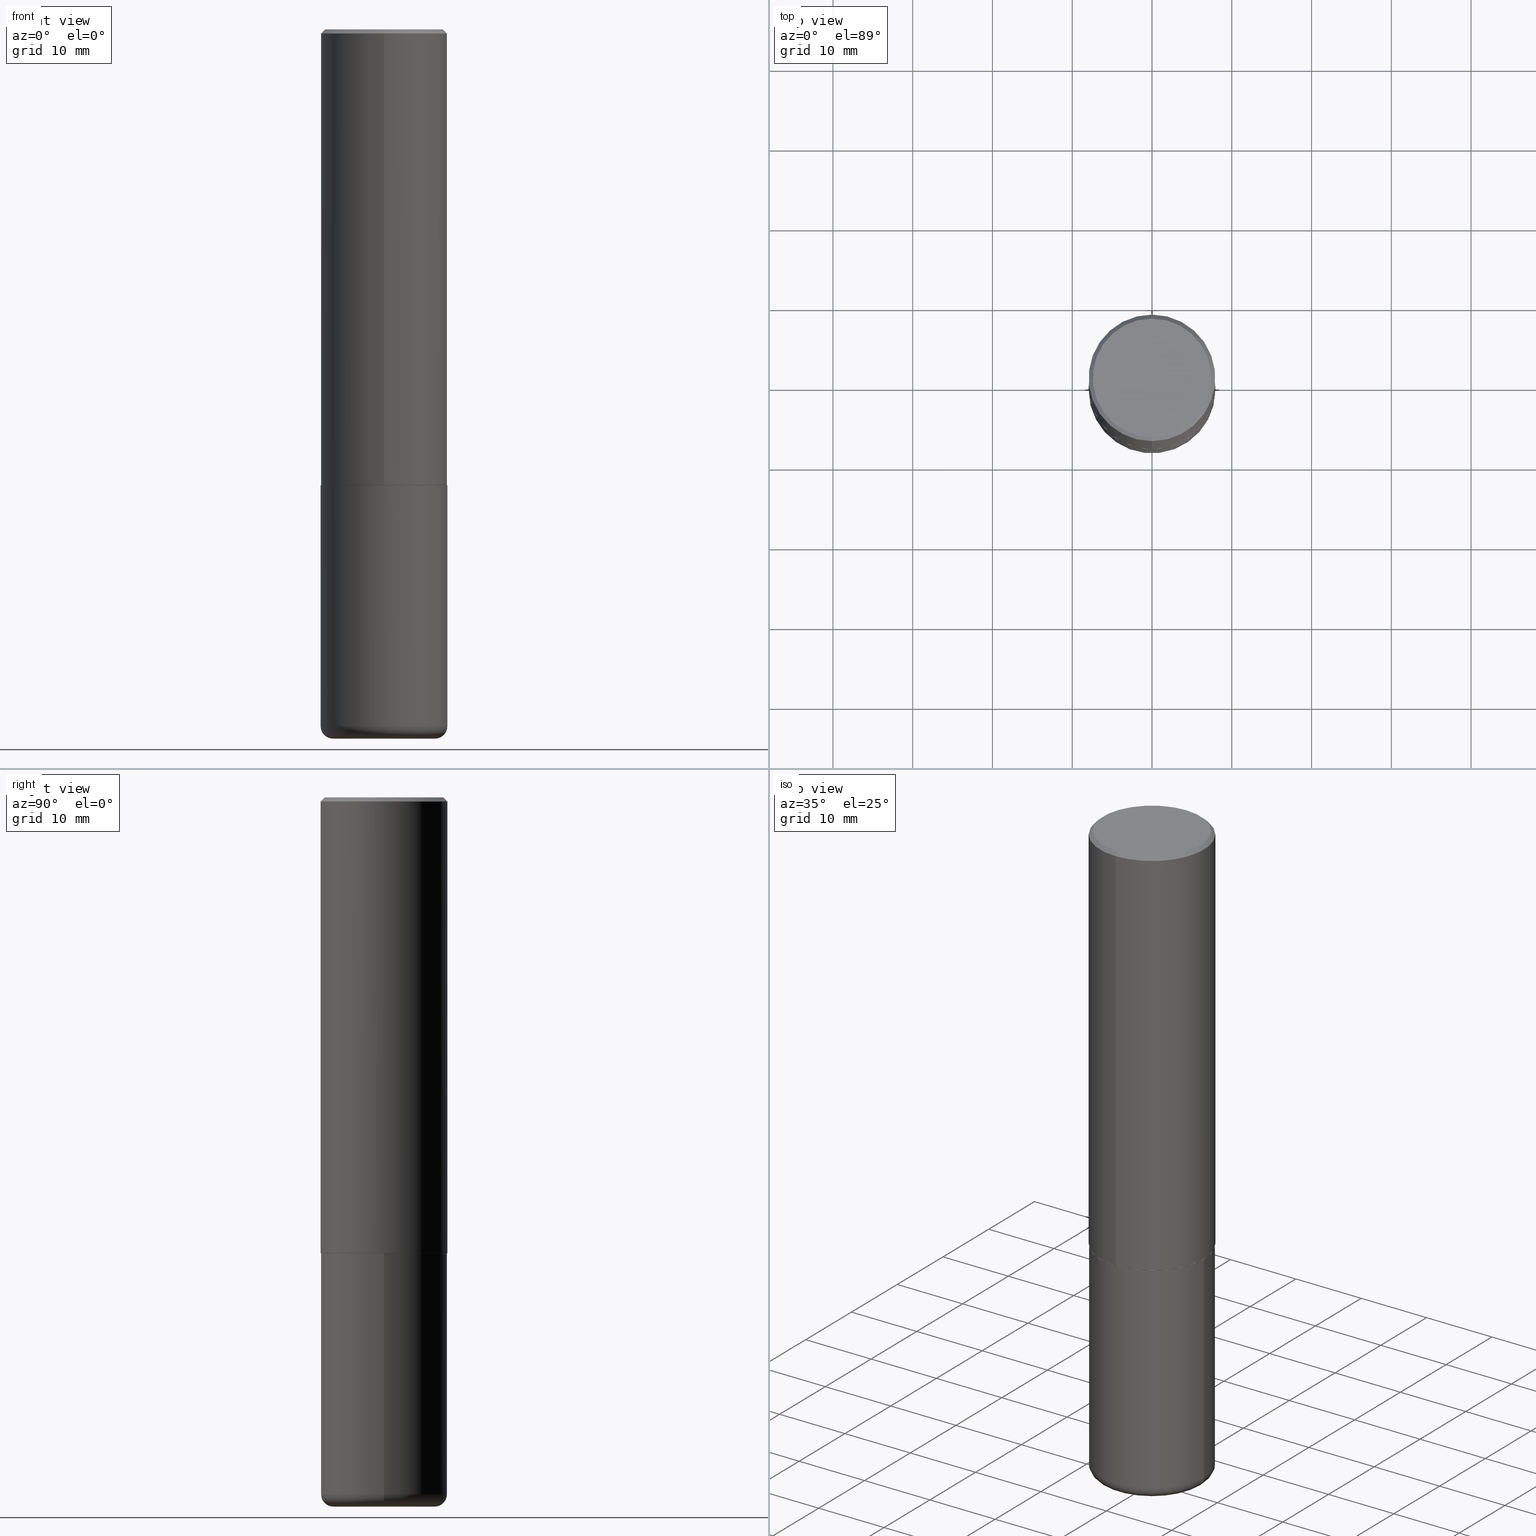
[diagram: canonical four-view strip — front | top / right | iso, engineering-drawing reading convention]
A machine part, canonical four-view strip (front | top / right | iso — engineering-drawing reading convention). The complete STEP part file that produces these views, byte-faithful:
ISO-10303-21;
HEADER;
FILE_DESCRIPTION (( 'STEP AP203' ),
    '1' );
FILE_NAME ('37201.STEP',
    '2024-03-01T21:49:35',
    ( '' ),
    ( '' ),
    'SwSTEP 2.0',
    'SolidWorks 2023',
    '' );
FILE_SCHEMA (( 'CONFIG_CONTROL_DESIGN' ));
ENDSEC;

DATA;
#1 = EDGE_CURVE ( 'NONE', #333, #210, #359, .T. ) ;
#2 = CARTESIAN_POINT ( 'NONE',  ( 5.499349729129385426E-29, -7.860064862005286079E-15, -2.249999999999999556 ) ) ;
#3 = AXIS2_PLACEMENT_3D ( 'NONE', #341, #94, #404 ) ;
#4 = DIRECTION ( 'NONE',  ( -6.982962677686265133E-15, -1.000000000000000000, 3.496765431890258103E-15 ) ) ;
#5 = ORIENTED_EDGE ( 'NONE', *, *, #203, .F. ) ;
#6 =( CONVERSION_BASED_UNIT ( 'INCH', #356 ) LENGTH_UNIT ( ) NAMED_UNIT ( #396 ) );
#7 = ORIENTED_EDGE ( 'NONE', *, *, #127, .F. ) ;
#8 = EDGE_CURVE ( 'NONE', #197, #234, #377, .T. ) ;
#9 = DESIGN_CONTEXT ( 'detailed design', #35, 'design' ) ;
#10 = CARTESIAN_POINT ( 'NONE',  ( 4.888310870337248995E-31, -6.986724321782500903E-17, -0.02000000000000006981 ) ) ;
#11 = EDGE_LOOP ( 'NONE', ( #194, #69 ) ) ;
#12 = APPLICATION_CONTEXT ( 'configuration controlled 3d designs of mechanical parts and assemblies' ) ;
#13 = DIRECTION ( 'NONE',  ( 1.000000000000000000, 0.000000000000000000, 0.000000000000000000 ) ) ;
#14 = ORIENTED_EDGE ( 'NONE', *, *, #198, .F. ) ;
#15 =( LENGTH_UNIT ( ) NAMED_UNIT ( * ) SI_UNIT ( $, .METRE. ) );
#16 = DIRECTION ( 'NONE',  ( 4.937700262164543309E-15, 0.7071067811865444641, -0.7071067811865506814 ) ) ;
#17 = PERSON_AND_ORGANIZATION_ROLE ( 'creator' ) ;
#18 = VECTOR ( 'NONE', #275, 39.37007874015748143 ) ;
#19 = AXIS2_PLACEMENT_3D ( 'NONE', #2, #189, #104 ) ;
#20 = COORDINATED_UNIVERSAL_TIME_OFFSET ( 5, 0, .BEHIND. ) ;
#21 = LINE ( 'NONE', #150, #18 ) ;
#22 = EDGE_CURVE ( 'NONE', #197, #117, #361, .T. ) ;
#23 = PERSON_AND_ORGANIZATION ( #321, #26 ) ;
#24 = LINE ( 'NONE', #184, #338 ) ;
#25 = EDGE_CURVE ( 'NONE', #133, #333, #57, .T. ) ;
#26 = ORGANIZATION ( 'UNSPECIFIED', 'UNSPECIFIED', '' ) ;
#27 = CYLINDRICAL_SURFACE ( 'NONE', #251, 0.3125000000000000000 ) ;
#28 = CARTESIAN_POINT ( 'NONE',  ( 5.496905573694216767E-29, -7.856571499844395127E-15, -2.248999999999999666 ) ) ;
#29 = PERSON_AND_ORGANIZATION ( #321, #26 ) ;
#30 = CC_DESIGN_DATE_AND_TIME_ASSIGNMENT ( #32, #177, ( #309 ) ) ;
#31 = DIRECTION ( 'NONE',  ( 1.000000000000000000, -6.982962677686269077E-15, 0.000000000000000000 ) ) ;
#32 = DATE_AND_TIME ( #313, #47 ) ;
#33 = CARTESIAN_POINT ( 'NONE',  ( 5.502304813916556222E-29, -7.855833012397076871E-15, -2.249999999999999556 ) ) ;
#34 = AXIS2_PLACEMENT_3D ( 'NONE', #33, #166, #383 ) ;
#35 = APPLICATION_CONTEXT ( 'configuration controlled 3d designs of mechanical parts and assemblies' ) ;
#36 = CARTESIAN_POINT ( 'NONE',  ( 2.220446049250341480E-15, 0.3124999999999924505, -2.249000000000000998 ) ) ;
#37 = EDGE_LOOP ( 'NONE', ( #5, #381 ) ) ;
#38 = CARTESIAN_POINT ( 'NONE',  ( 8.559140821647976968E-29, -1.222018468595100934E-14, -3.500000000000000000 ) ) ;
#39 = CARTESIAN_POINT ( 'NONE',  ( -0.3125000000000000000, -7.712818359758435078E-15, -2.249999999999999556 ) ) ;
#40 = AXIS2_PLACEMENT_3D ( 'NONE', #108, #397, #230 ) ;
#41 = CONICAL_SURFACE ( 'NONE', #19, 0.3114999999999999991, 0.7853981633975507526 ) ;
#42 = PLANE ( 'NONE',  #40 ) ;
#43 = PRODUCT_DEFINITION_SHAPE ( 'NONE', 'NONE',  #138 ) ;
#44 = ORIENTED_EDGE ( 'NONE', *, *, #326, .T. ) ;
#45 = ORIENTED_EDGE ( 'NONE', *, *, #78, .F. ) ;
#46 = ORIENTED_EDGE ( 'NONE', *, *, #1, .T. ) ;
#47 = LOCAL_TIME ( 16, 49, 35.00000000000000000, #124 ) ;
#48 = PERSON_AND_ORGANIZATION ( #321, #26 ) ;
#49 = EDGE_LOOP ( 'NONE', ( #45, #394, #240, #82 ) ) ;
#50 = COORDINATED_UNIVERSAL_TIME_OFFSET ( 5, 0, .BEHIND. ) ;
#51 = CARTESIAN_POINT ( 'NONE',  ( -2.175192874099216718E-15, -0.3115000000000078817, -2.249999999999998668 ) ) ;
#52 = CC_DESIGN_PERSON_AND_ORGANIZATION_ASSIGNMENT ( #23, #190, ( #84 ) ) ;
#53 = DIRECTION ( 'NONE',  ( -2.445468806185136877E-29, 3.491481338843145188E-15, 1.000000000000000000 ) ) ;
#54 = VECTOR ( 'NONE', #337, 39.37007874015748143 ) ;
#55 =( GEOMETRIC_REPRESENTATION_CONTEXT ( 3 ) GLOBAL_UNCERTAINTY_ASSIGNED_CONTEXT ( ( #273 ) ) GLOBAL_UNIT_ASSIGNED_CONTEXT ( ( #6, #76, #112 ) ) REPRESENTATION_CONTEXT ( 'NONE', 'WORKASPACE' ) );
#56 = AXIS2_PLACEMENT_3D ( 'NONE', #270, #398, #139 ) ;
#57 = CIRCLE ( 'NONE', #142, 0.2924999999999997047 ) ;
#58 = APPROVAL_DATE_TIME ( #274, #245 ) ;
#59 = DIRECTION ( 'NONE',  ( 6.982962677686265922E-15, 1.000000000000000000, -3.493362160891238126E-15 ) ) ;
#60 = CARTESIAN_POINT ( 'NONE',  ( 5.502304813916556222E-29, -7.855833012397076871E-15, -2.249999999999999556 ) ) ;
#61 = DIRECTION ( 'NONE',  ( 1.000000000000000000, -6.982962677686269077E-15, 0.000000000000000000 ) ) ;
#62 = EDGE_CURVE ( 'NONE', #117, #145, #187, .T. ) ;
#63 = LOCAL_TIME ( 16, 49, 35.00000000000000000, #85 ) ;
#64 = VECTOR ( 'NONE', #100, 39.37007874015748143 ) ;
#65 = PLANE ( 'NONE',  #179 ) ;
#66 = FACE_OUTER_BOUND ( 'NONE', #49, .T. ) ;
#67 = DIRECTION ( 'NONE',  ( 2.444155435168616212E-29, -3.493362160891238520E-15, -1.000000000000000000 ) ) ;
#68 = LINE ( 'NONE', #130, #263 ) ;
#69 = ORIENTED_EDGE ( 'NONE', *, *, #214, .F. ) ;
#70 = DIRECTION ( 'NONE',  ( -6.982962677686266711E-15, -1.000000000000000000, 3.493362160891238520E-15 ) ) ;
#71 = VERTEX_POINT ( 'NONE', #178 ) ;
#72 = CIRCLE ( 'NONE', #34, 0.3125000000000000000 ) ;
#73 = DIRECTION ( 'NONE',  ( -6.982962677686265133E-15, -1.000000000000000000, 3.496765431890258103E-15 ) ) ;
#74 = CARTESIAN_POINT ( 'NONE',  ( -3.247647768543791356E-45, 4.641771003304080589E-31, 1.328740276421799924E-16 ) ) ;
#75 = AXIS2_PLACEMENT_3D ( 'NONE', #172, #146, #168 ) ;
#76 =( NAMED_UNIT ( * ) PLANE_ANGLE_UNIT ( ) SI_UNIT ( $, .RADIAN. ) );
#77 = EDGE_LOOP ( 'NONE', ( #44, #231, #257, #86 ) ) ;
#78 = EDGE_CURVE ( 'NONE', #71, #293, #375, .T. ) ;
#79 = EDGE_CURVE ( 'NONE', #293, #113, #400, .T. ) ;
#80 = ORIENTED_EDGE ( 'NONE', *, *, #154, .F. ) ;
#81 = PERSON_AND_ORGANIZATION ( #321, #26 ) ;
#82 = ORIENTED_EDGE ( 'NONE', *, *, #79, .F. ) ;
#83 = EDGE_CURVE ( 'NONE', #234, #145, #182, .T. ) ;
#84 = PRODUCT_DEFINITION_FORMATION_WITH_SPECIFIED_SOURCE ( 'ANY', '', #382, .NOT_KNOWN. ) ;
#85 = COORDINATED_UNIVERSAL_TIME_OFFSET ( 5, 0, .BEHIND. ) ;
#86 = ORIENTED_EDGE ( 'NONE', *, *, #308, .F. ) ;
#87 = CC_DESIGN_PERSON_AND_ORGANIZATION_ASSIGNMENT ( #81, #207, ( #382 ) ) ;
#88 = CARTESIAN_POINT ( 'NONE',  ( 5.496905573694216767E-29, -7.856571499844395127E-15, -2.248999999999999666 ) ) ;
#89 = DATE_TIME_ROLE ( 'creation_date' ) ;
#90 = CARTESIAN_POINT ( 'NONE',  ( 2.042516583223230567E-15, 0.2924999999999997047, -9.553714182395964653E-16 ) ) ;
#91 = CONICAL_SURFACE ( 'NONE', #249, 0.3124999999999998890, 0.7853981633974473908 ) ;
#92 = CONICAL_SURFACE ( 'NONE', #302, 0.3114999999999999991, 0.7853981633975507526 ) ;
#93 = PERSON_AND_ORGANIZATION ( #321, #26 ) ;
#94 = DIRECTION ( 'NONE',  ( -6.982962677686266711E-15, -1.000000000000000000, 3.491481338843145583E-15 ) ) ;
#95 = MANIFOLD_SOLID_BREP ( 'Body-Move/Copy2[1]', #181 ) ;
#96 = CC_DESIGN_PERSON_AND_ORGANIZATION_ASSIGNMENT ( #183, #373, ( #309 ) ) ;
#97 = CC_DESIGN_SECURITY_CLASSIFICATION ( #309, ( #84 ) ) ;
#98 = VECTOR ( 'NONE', #123, 39.37007874015748143 ) ;
#99 = FACE_OUTER_BOUND ( 'NONE', #77, .T. ) ;
#100 = DIRECTION ( 'NONE',  ( -2.444155435168616212E-29, 3.493362160891238126E-15, 1.000000000000000000 ) ) ;
#101 = DIRECTION ( 'NONE',  ( -2.445468806185136597E-29, 3.491481338843145583E-15, 1.000000000000000000 ) ) ;
#102 = EDGE_LOOP ( 'NONE', ( #355, #236 ) ) ;
#103 = AXIS2_PLACEMENT_3D ( 'NONE', #325, #297, #13 ) ;
#104 = DIRECTION ( 'NONE',  ( -6.982962677686265922E-15, -1.000000000000000000, 3.507991003100177457E-15 ) ) ;
#105 = ORIENTED_EDGE ( 'NONE', *, *, #349, .T. ) ;
#106 = DIRECTION ( 'NONE',  ( -1.000000000000000000, 6.982962677686265922E-15, -4.876176775795935793E-29 ) ) ;
#107 = ORIENTED_EDGE ( 'NONE', *, *, #131, .T. ) ;
#108 = CARTESIAN_POINT ( 'NONE',  ( 5.499349729129385426E-29, -7.860064862005286079E-15, -2.249999999999999556 ) ) ;
#109 = ORIENTED_EDGE ( 'NONE', *, *, #62, .F. ) ;
#110 = CC_DESIGN_PERSON_AND_ORGANIZATION_ASSIGNMENT ( #340, #17, ( #138 ) ) ;
#111 = CIRCLE ( 'NONE', #122, 0.2525000000000000022 ) ;
#112 =( NAMED_UNIT ( * ) SI_UNIT ( $, .STERADIAN. ) SOLID_ANGLE_UNIT ( ) );
#113 = VERTEX_POINT ( 'NONE', #401 ) ;
#114 = AXIS2_PLACEMENT_3D ( 'NONE', #60, #415, #156 ) ;
#115 = ORIENTED_EDGE ( 'NONE', *, *, #417, .F. ) ;
#116 = MECHANICAL_CONTEXT ( 'NONE', #12, 'mechanical' ) ;
#117 = VERTEX_POINT ( 'NONE', #402 ) ;
#118 = DATE_AND_TIME ( #276, #121 ) ;
#119 = PRODUCT_RELATED_PRODUCT_CATEGORY ( 'detail', '', ( #382 ) ) ;
#120 = CARTESIAN_POINT ( 'NONE',  ( -0.2525000000000000022, -1.021657539782616686E-14, -3.439999999999999947 ) ) ;
#121 = LOCAL_TIME ( 16, 49, 35.00000000000000000, #151 ) ;
#122 = AXIS2_PLACEMENT_3D ( 'NONE', #135, #101, #412 ) ;
#123 = DIRECTION ( 'NONE',  ( 5.024295867788576727E-15, 0.7071067811866224018, 0.7071067811864726327 ) ) ;
#124 = COORDINATED_UNIVERSAL_TIME_OFFSET ( 5, 0, .BEHIND. ) ;
#125 = PLANE ( 'NONE',  #218 ) ;
#126 = CARTESIAN_POINT ( 'NONE',  ( 0.000000000000000000, 0.000000000000000000, 0.000000000000000000 ) ) ;
#127 = EDGE_CURVE ( 'NONE', #293, #210, #241, .T. ) ;
#128 = CONICAL_SURFACE ( 'NONE', #414, 0.3124999999999998890, 0.7853981633974473908 ) ;
#129 = AXIS2_PLACEMENT_3D ( 'NONE', #387, #205, #267 ) ;
#130 = CARTESIAN_POINT ( 'NONE',  ( -0.3125000000000000000, 2.220446049250313081E-15, -1.537167215704658232E-29 ) ) ;
#131 = EDGE_CURVE ( 'NONE', #145, #268, #24, .T. ) ;
#132 = DIRECTION ( 'NONE',  ( -2.445468806185136597E-29, 3.491481338843145583E-15, 1.000000000000000000 ) ) ;
#133 = VERTEX_POINT ( 'NONE', #186 ) ;
#134 = DIRECTION ( 'NONE',  ( -1.000000000000000000, 6.982962677686265922E-15, -4.876176775795935793E-29 ) ) ;
#135 = CARTESIAN_POINT ( 'NONE',  ( 8.559140821647976968E-29, -1.222018468595100934E-14, -3.500000000000000000 ) ) ;
#136 = VERTEX_POINT ( 'NONE', #51 ) ;
#137 = DIRECTION ( 'NONE',  ( -2.444155435168616212E-29, 3.493362160891238520E-15, 1.000000000000000000 ) ) ;
#138 = PRODUCT_DEFINITION ( 'UNKNOWN', '', #84, #9 ) ;
#139 = DIRECTION ( 'NONE',  ( 1.000000000000000000, -6.982962677686269866E-15, 0.000000000000000000 ) ) ;
#140 = ORIENTED_EDGE ( 'NONE', *, *, #131, .F. ) ;
#141 = EDGE_LOOP ( 'NONE', ( #7, #367, #176, #115 ) ) ;
#142 = AXIS2_PLACEMENT_3D ( 'NONE', #74, #202, #262 ) ;
#143 = EDGE_CURVE ( 'NONE', #136, #113, #215, .T. ) ;
#144 = APPLICATION_PROTOCOL_DEFINITION ( 'international standard', 'config_control_design', 1994, #12 ) ;
#145 = VERTEX_POINT ( 'NONE', #310 ) ;
#146 = DIRECTION ( 'NONE',  ( -2.444155435168616212E-29, 3.493362160891238520E-15, 1.000000000000000000 ) ) ;
#147 = EDGE_LOOP ( 'NONE', ( #327, #324 ) ) ;
#148 = PERSON_AND_ORGANIZATION ( #321, #26 ) ;
#149 = CC_DESIGN_APPROVAL ( #245, ( #138 ) ) ;
#150 = CARTESIAN_POINT ( 'NONE',  ( -2.143905624303602036E-15, -0.3124999999999999445, -0.01999999999999897693 ) ) ;
#151 = COORDINATED_UNIVERSAL_TIME_OFFSET ( 5, 0, .BEHIND. ) ;
#152 = CARTESIAN_POINT ( 'NONE',  ( 2.213340621892766504E-15, 0.3114999999999921720, -2.250000000000000888 ) ) ;
#153 = ADVANCED_FACE ( 'NONE', ( #307 ), #27, .T. ) ;
#154 = EDGE_CURVE ( 'NONE', #133, #300, #21, .T. ) ;
#155 = DIRECTION ( 'NONE',  ( 1.000000000000000000, -6.982962677686266711E-15, 4.876176775795936353E-29 ) ) ;
#156 = DIRECTION ( 'NONE',  ( 1.000000000000000000, -6.982962677686269077E-15, 0.000000000000000000 ) ) ;
#157 = DATE_AND_TIME ( #301, #303 ) ;
#158 = FACE_OUTER_BOUND ( 'NONE', #224, .T. ) ;
#159 = ADVANCED_FACE ( 'NONE', ( #371 ), #125, .F. ) ;
#160 = AXIS2_PLACEMENT_3D ( 'NONE', #248, #132, #31 ) ;
#161 = CARTESIAN_POINT ( 'NONE',  ( 0.2525000000000000022, -1.398338276206679106E-14, -3.500000000000000000 ) ) ;
#162 = CC_DESIGN_DATE_AND_TIME_ASSIGNMENT ( #239, #89, ( #138 ) ) ;
#163 = ORIENTED_EDGE ( 'NONE', *, *, #83, .F. ) ;
#164 = FACE_OUTER_BOUND ( 'NONE', #141, .T. ) ;
#165 = ORIENTED_EDGE ( 'NONE', *, *, #288, .F. ) ;
#166 = DIRECTION ( 'NONE',  ( -2.445468806185136597E-29, 3.491481338843145583E-15, 1.000000000000000000 ) ) ;
#167 = VECTOR ( 'NONE', #16, 39.37007874015748143 ) ;
#168 = DIRECTION ( 'NONE',  ( -6.982962677686265133E-15, -1.000000000000000000, 3.493362160891238126E-15 ) ) ;
#169 = ORIENTED_EDGE ( 'NONE', *, *, #22, .T. ) ;
#170 = FACE_OUTER_BOUND ( 'NONE', #11, .T. ) ;
#171 = EDGE_LOOP ( 'NONE', ( #298, #291, #204, #229 ) ) ;
#172 = CARTESIAN_POINT ( 'NONE',  ( -3.247647768543791356E-45, 4.641771003304080589E-31, 1.328740276421799924E-16 ) ) ;
#173 = ORIENTED_EDGE ( 'NONE', *, *, #1, .F. ) ;
#174 = ORIENTED_EDGE ( 'NONE', *, *, #222, .T. ) ;
#175 = CYLINDRICAL_SURFACE ( 'NONE', #217, 0.3125000000000000000 ) ;
#176 = ORIENTED_EDGE ( 'NONE', *, *, #308, .T. ) ;
#177 = DATE_TIME_ROLE ( 'classification_date' ) ;
#178 = CARTESIAN_POINT ( 'NONE',  ( 2.216893335571567797E-15, 0.3114999999999921720, -2.250000000000000888 ) ) ;
#179 = AXIS2_PLACEMENT_3D ( 'NONE', #350, #418, #134 ) ;
#180 = CARTESIAN_POINT ( 'NONE',  ( -2.175192874099216718E-15, -0.3115000000000078817, -2.249999999999998668 ) ) ;
#181 = CLOSED_SHELL ( 'NONE', ( #153, #253, #315, #364, #351, #322 ) ) ;
#182 = CIRCLE ( 'NONE', #3, 0.05999999999999994227 ) ;
#183 = PERSON_AND_ORGANIZATION ( #321, #26 ) ;
#184 = CARTESIAN_POINT ( 'NONE',  ( 0.3125000000000000000, -2.182175836776958347E-15, 1.523805242436230075E-29 ) ) ;
#185 = ADVANCED_FACE ( 'NONE', ( #374 ), #128, .T. ) ;
#186 = CARTESIAN_POINT ( 'NONE',  ( -2.075300644325886310E-15, -0.2924999999999997047, 1.154682459702866479E-15 ) ) ;
#187 = CIRCLE ( 'NONE', #199, 0.3125000000000000000 ) ;
#188 = FACE_OUTER_BOUND ( 'NONE', #37, .T. ) ;
#189 = DIRECTION ( 'NONE',  ( -2.444155435168616212E-29, 3.493362160891238520E-15, 1.000000000000000000 ) ) ;
#190 = PERSON_AND_ORGANIZATION_ROLE ( 'creator' ) ;
#191 = CYLINDRICAL_SURFACE ( 'NONE', #323, 0.3125000000000000555 ) ;
#192 = CIRCLE ( 'NONE', #305, 0.3124999999999998890 ) ;
#193 = DIRECTION ( 'NONE',  ( -2.445468806185136597E-29, 3.491481338843145583E-15, 1.000000000000000000 ) ) ;
#194 = ORIENTED_EDGE ( 'NONE', *, *, #408, .F. ) ;
#195 = DIRECTION ( 'NONE',  ( -2.444155435168616212E-29, 3.493362160891238520E-15, 1.000000000000000000 ) ) ;
#196 = EDGE_CURVE ( 'NONE', #384, #268, #360, .T. ) ;
#197 = VERTEX_POINT ( 'NONE', #284 ) ;
#198 = EDGE_CURVE ( 'NONE', #145, #117, #201, .T. ) ;
#199 = AXIS2_PLACEMENT_3D ( 'NONE', #390, #246, #61 ) ;
#200 = DIRECTION ( 'NONE',  ( -2.444155435168616212E-29, 3.493362160891238520E-15, 1.000000000000000000 ) ) ;
#201 = CIRCLE ( 'NONE', #160, 0.3125000000000000000 ) ;
#202 = DIRECTION ( 'NONE',  ( -2.444155435168616212E-29, 3.493362160891238520E-15, 1.000000000000000000 ) ) ;
#203 = EDGE_CURVE ( 'NONE', #234, #197, #111, .T. ) ;
#204 = ORIENTED_EDGE ( 'NONE', *, *, #326, .F. ) ;
#205 = DIRECTION ( 'NONE',  ( -2.445468806185136597E-29, 3.491481338843145583E-15, 1.000000000000000000 ) ) ;
#206 = ORIENTED_EDGE ( 'NONE', *, *, #222, .F. ) ;
#207 = PERSON_AND_ORGANIZATION_ROLE ( 'design_owner' ) ;
#208 = ORIENTED_EDGE ( 'NONE', *, *, #154, .T. ) ;
#209 = APPROVAL_DATE_TIME ( #118, #228 ) ;
#210 = VERTEX_POINT ( 'NONE', #287 ) ;
#211 = CARTESIAN_POINT ( 'NONE',  ( 2.220446049250313081E-15, 0.3125000000000000555, -1.091675675278512284E-15 ) ) ;
#212 = DIRECTION ( 'NONE',  ( 2.444155435168616212E-29, -3.493362160891238126E-15, -1.000000000000000000 ) ) ;
#213 = APPROVAL_ROLE ( '' ) ;
#214 = EDGE_CURVE ( 'NONE', #71, #136, #342, .T. ) ;
#215 = LINE ( 'NONE', #180, #285 ) ;
#216 = MANIFOLD_SOLID_BREP ( 'Body-Move/Copy2[2]', #407 ) ;
#217 = AXIS2_PLACEMENT_3D ( 'NONE', #261, #264, #292 ) ;
#218 = AXIS2_PLACEMENT_3D ( 'NONE', #90, #212, #59 ) ;
#219 = CALENDAR_DATE ( 2024, 1, 3 ) ;
#220 = ADVANCED_FACE ( 'NONE', ( #164 ), #254, .T. ) ;
#221 = FACE_OUTER_BOUND ( 'NONE', #147, .T. ) ;
#222 = EDGE_CURVE ( 'NONE', #117, #384, #68, .T. ) ;
#223 = DIRECTION ( 'NONE',  ( -6.982962677686265922E-15, -1.000000000000000000, 3.507991003100177457E-15 ) ) ;
#224 = EDGE_LOOP ( 'NONE', ( #395, #208, #105, #173 ) ) ;
#225 = APPROVAL_PERSON_ORGANIZATION ( #93, #282, #213 ) ;
#226 = CARTESIAN_POINT ( 'NONE',  ( 4.888310870337248995E-31, -6.986724321782500903E-17, -0.02000000000000006981 ) ) ;
#227 = DIRECTION ( 'NONE',  ( -6.982962677686265922E-15, -1.000000000000000000, 3.507991003100177457E-15 ) ) ;
#228 = APPROVAL ( #369, 'UNSPECIFIED' ) ;
#229 = ORIENTED_EDGE ( 'NONE', *, *, #143, .F. ) ;
#230 = DIRECTION ( 'NONE',  ( -6.982962677686265922E-15, -1.000000000000000000, 3.493362160891238126E-15 ) ) ;
#231 = ORIENTED_EDGE ( 'NONE', *, *, #127, .T. ) ;
#232 = CIRCLE ( 'NONE', #250, 0.3124999999999998890 ) ;
#233 = AXIS2_PLACEMENT_3D ( 'NONE', #126, #380, #352 ) ;
#234 = VERTEX_POINT ( 'NONE', #161 ) ;
#235 = CARTESIAN_POINT ( 'NONE',  ( 2.112346210000094260E-15, 0.2924999999999997047, -8.889344044185063951E-16 ) ) ;
#236 = ORIENTED_EDGE ( 'NONE', *, *, #25, .T. ) ;
#237 = ADVANCED_FACE ( 'NONE', ( #99 ), #191, .T. ) ;
#238 = CARTESIAN_POINT ( 'NONE',  ( 2.182175836776957558E-15, 0.3124999999999998335, -0.02000000000000116268 ) ) ;
#239 = DATE_AND_TIME ( #306, #331 ) ;
#240 = ORIENTED_EDGE ( 'NONE', *, *, #143, .T. ) ;
#241 = LINE ( 'NONE', #211, #54 ) ;
#242 = CARTESIAN_POINT ( 'NONE',  ( 0.000000000000000000, 0.000000000000000000, 0.000000000000000000 ) ) ;
#243 = APPROVAL_ROLE ( '' ) ;
#244 = APPROVAL_PERSON_ORGANIZATION ( #48, #245, #320 ) ;
#245 = APPROVAL ( #299, 'UNSPECIFIED' ) ;
#246 = DIRECTION ( 'NONE',  ( -2.445468806185136597E-29, 3.491481338843145583E-15, 1.000000000000000000 ) ) ;
#247 = DIRECTION ( 'NONE',  ( -2.444155435168616212E-29, 3.493362160891238520E-15, 1.000000000000000000 ) ) ;
#248 = CARTESIAN_POINT ( 'NONE',  ( 8.412412693276869938E-29, -1.201069580562042103E-14, -3.439999999999999947 ) ) ;
#249 = AXIS2_PLACEMENT_3D ( 'NONE', #226, #67, #346 ) ;
#250 = AXIS2_PLACEMENT_3D ( 'NONE', #358, #200, #73 ) ;
#251 = AXIS2_PLACEMENT_3D ( 'NONE', #242, #277, #155 ) ;
#252 = CARTESIAN_POINT ( 'NONE',  ( 0.000000000000000000, 0.000000000000000000, 0.000000000000000000 ) ) ;
#253 = ADVANCED_FACE ( 'NONE', ( #314 ), #393, .T. ) ;
#254 = CYLINDRICAL_SURFACE ( 'NONE', #233, 0.3125000000000000555 ) ;
#255 = EDGE_LOOP ( 'NONE', ( #80, #335, #46, #295 ) ) ;
#256 = FACE_OUTER_BOUND ( 'NONE', #171, .T. ) ;
#257 = ORIENTED_EDGE ( 'NONE', *, *, #349, .F. ) ;
#258 = CARTESIAN_POINT ( 'NONE',  ( -2.143905624303602036E-15, -0.3124999999999999445, -0.01999999999999897693 ) ) ;
#259 = FACE_OUTER_BOUND ( 'NONE', #353, .T. ) ;
#260 = DIRECTION ( 'NONE',  ( 7.105427357601001859E-15, 1.000000000000000000, -3.491481338843145583E-15 ) ) ;
#261 = CARTESIAN_POINT ( 'NONE',  ( 0.000000000000000000, 0.000000000000000000, 0.000000000000000000 ) ) ;
#262 = DIRECTION ( 'NONE',  ( -6.982962677686265133E-15, -1.000000000000000000, 3.493362160891238126E-15 ) ) ;
#263 = VECTOR ( 'NONE', #376, 39.37007874015748143 ) ;
#264 = DIRECTION ( 'NONE',  ( -2.445468806185136597E-29, 3.491481338843145583E-15, 1.000000000000000000 ) ) ;
#265 = CIRCLE ( 'NONE', #75, 0.2924999999999997047 ) ;
#266 = ORIENTED_EDGE ( 'NONE', *, *, #203, .T. ) ;
#267 = DIRECTION ( 'NONE',  ( 1.000000000000000000, -6.982962677686264344E-15, 4.883557194083112340E-29 ) ) ;
#268 = VERTEX_POINT ( 'NONE', #317 ) ;
#269 = ADVANCED_FACE ( 'NONE', ( #66 ), #41, .T. ) ;
#270 = CARTESIAN_POINT ( 'NONE',  ( 8.559140821647976968E-29, -1.222018468595100934E-14, -3.500000000000000000 ) ) ;
#271 = PERSON_AND_ORGANIZATION_ROLE ( 'design_supplier' ) ;
#272 = DIRECTION ( 'NONE',  ( -6.982962677686265922E-15, -1.000000000000000000, 3.496765431890253764E-15 ) ) ;
#273 = UNCERTAINTY_MEASURE_WITH_UNIT (LENGTH_MEASURE( 1.000000000000000082E-05 ), #6, 'distance_accuracy_value', 'NONE');
#274 = DATE_AND_TIME ( #219, #63 ) ;
#275 = DIRECTION ( 'NONE',  ( -4.851104656540959542E-15, -0.7071067811865493491, -0.7071067811865457964 ) ) ;
#276 = CALENDAR_DATE ( 2024, 1, 3 ) ;
#277 = DIRECTION ( 'NONE',  ( -2.445468806185136597E-29, 3.491481338843145583E-15, 1.000000000000000000 ) ) ;
#278 = CC_DESIGN_PERSON_AND_ORGANIZATION_ASSIGNMENT ( #148, #271, ( #84 ) ) ;
#279 = CIRCLE ( 'NONE', #392, 0.3114999999999999991 ) ;
#280 = ADVANCED_FACE ( 'NONE', ( #158 ), #91, .T. ) ;
#281 = CARTESIAN_POINT ( 'NONE',  ( 4.888310870337248995E-31, -6.986724321782500903E-17, -0.02000000000000006981 ) ) ;
#282 = APPROVAL ( #334, 'UNSPECIFIED' ) ;
#283 = DIRECTION ( 'NONE',  ( -2.444155435168616212E-29, 3.493362160891238520E-15, 1.000000000000000000 ) ) ;
#284 = CARTESIAN_POINT ( 'NONE',  ( -0.2525000000000000022, -1.010815701726343156E-14, -3.500000000000000000 ) ) ;
#285 = VECTOR ( 'NONE', #304, 39.37007874015748143 ) ;
#286 = AXIS2_PLACEMENT_3D ( 'NONE', #88, #247, #272 ) ;
#287 = CARTESIAN_POINT ( 'NONE',  ( 2.182175836776957558E-15, 0.3124999999999998335, -0.02000000000000116268 ) ) ;
#288 = EDGE_CURVE ( 'NONE', #268, #384, #72, .T. ) ;
#289 = LINE ( 'NONE', #379, #64 ) ;
#290 = DIRECTION ( 'NONE',  ( -2.444155435168616212E-29, 3.493362160891238520E-15, 1.000000000000000000 ) ) ;
#291 = ORIENTED_EDGE ( 'NONE', *, *, #78, .T. ) ;
#292 = DIRECTION ( 'NONE',  ( 1.000000000000000000, -6.982962677686266711E-15, 4.876176775795936353E-29 ) ) ;
#293 = VERTEX_POINT ( 'NONE', #36 ) ;
#294 = FACE_OUTER_BOUND ( 'NONE', #365, .T. ) ;
#295 = ORIENTED_EDGE ( 'NONE', *, *, #417, .T. ) ;
#296 = EDGE_LOOP ( 'NONE', ( #266, #169, #14, #163 ) ) ;
#297 = DIRECTION ( 'NONE',  ( 0.000000000000000000, 0.000000000000000000, 1.000000000000000000 ) ) ;
#298 = ORIENTED_EDGE ( 'NONE', *, *, #408, .T. ) ;
#299 = APPROVAL_STATUS ( 'not_yet_approved' ) ;
#300 = VERTEX_POINT ( 'NONE', #258 ) ;
#301 = CALENDAR_DATE ( 2024, 1, 3 ) ;
#302 = AXIS2_PLACEMENT_3D ( 'NONE', #354, #195, #319 ) ;
#303 = LOCAL_TIME ( 16, 49, 35.00000000000000000, #50 ) ;
#304 = DIRECTION ( 'NONE',  ( -4.937700262165053702E-15, -0.7071067811866175168, 0.7071067811864775177 ) ) ;
#305 = AXIS2_PLACEMENT_3D ( 'NONE', #10, #137, #4 ) ;
#306 = CALENDAR_DATE ( 2024, 1, 3 ) ;
#307 = FACE_OUTER_BOUND ( 'NONE', #416, .T. ) ;
#308 = EDGE_CURVE ( 'NONE', #113, #300, #289, .T. ) ;
#309 = SECURITY_CLASSIFICATION ( '', '', #403 ) ;
#310 = CARTESIAN_POINT ( 'NONE',  ( 0.3125000000000000000, -1.419287164239737937E-14, -3.439999999999999947 ) ) ;
#311 = PLANE ( 'NONE',  #411 ) ;
#312 = DIRECTION ( 'NONE',  ( 1.000000000000000000, -6.982962677686264344E-15, 4.883557194083112340E-29 ) ) ;
#313 = CALENDAR_DATE ( 2024, 1, 3 ) ;
#314 = FACE_OUTER_BOUND ( 'NONE', #296, .T. ) ;
#315 = ADVANCED_FACE ( 'NONE', ( #221 ), #65, .F. ) ;
#316 = CIRCLE ( 'NONE', #372, 0.3125000000000002776 ) ;
#317 = CARTESIAN_POINT ( 'NONE',  ( 0.3125000000000000000, -1.003800884917403522E-14, -2.249999999999999556 ) ) ;
#318 = ADVANCED_FACE ( 'NONE', ( #256 ), #92, .T. ) ;
#319 = DIRECTION ( 'NONE',  ( -6.982962677686265922E-15, -1.000000000000000000, 3.507991003100177457E-15 ) ) ;
#320 = APPROVAL_ROLE ( '' ) ;
#321 = PERSON ( 'UNSPECIFIED', 'UNSPECIFIED', 'UNSPECIFIED', ('UNSPECIFIED'), ('UNSPECIFIED'), ('UNSPECIFIED') ) ;
#322 = ADVANCED_FACE ( 'NONE', ( #188 ), #311, .T. ) ;
#323 = AXIS2_PLACEMENT_3D ( 'NONE', #252, #290, #70 ) ;
#324 = ORIENTED_EDGE ( 'NONE', *, *, #196, .T. ) ;
#325 = CARTESIAN_POINT ( 'NONE',  ( 0.000000000000000000, 0.000000000000000000, 0.000000000000000000 ) ) ;
#326 = EDGE_CURVE ( 'NONE', #113, #293, #316, .T. ) ;
#327 = ORIENTED_EDGE ( 'NONE', *, *, #288, .T. ) ;
#328 = DIRECTION ( 'NONE',  ( -2.444155435168616212E-29, 3.493362160891238520E-15, 1.000000000000000000 ) ) ;
#329 = ORIENTED_EDGE ( 'NONE', *, *, #198, .T. ) ;
#330 = EDGE_CURVE ( 'NONE', #333, #133, #265, .T. ) ;
#331 = LOCAL_TIME ( 16, 49, 35.00000000000000000, #20 ) ;
#332 = APPLICATION_PROTOCOL_DEFINITION ( 'international standard', 'config_control_design', 1994, #35 ) ;
#333 = VERTEX_POINT ( 'NONE', #235 ) ;
#334 = APPROVAL_STATUS ( 'not_yet_approved' ) ;
#335 = ORIENTED_EDGE ( 'NONE', *, *, #330, .F. ) ;
#336 = APPROVAL_DATE_TIME ( #157, #282 ) ;
#337 = DIRECTION ( 'NONE',  ( -2.444155435168616212E-29, 3.493362160891238126E-15, 1.000000000000000000 ) ) ;
#338 = VECTOR ( 'NONE', #53, 39.37007874015748143 ) ;
#339 = APPROVAL_PERSON_ORGANIZATION ( #29, #228, #243 ) ;
#340 = PERSON_AND_ORGANIZATION ( #321, #26 ) ;
#341 = CARTESIAN_POINT ( 'NONE',  ( 0.2525000000000000022, -1.377389388173620432E-14, -3.439999999999999947 ) ) ;
#342 = CIRCLE ( 'NONE', #391, 0.3114999999999999991 ) ;
#343 = SHAPE_DEFINITION_REPRESENTATION ( #43, #405 ) ;
#344 = DIRECTION ( 'NONE',  ( 2.444155435168616212E-29, -3.493362160891238520E-15, -1.000000000000000000 ) ) ;
#345 = CC_DESIGN_APPROVAL ( #282, ( #309 ) ) ;
#346 = DIRECTION ( 'NONE',  ( 6.982962677686265133E-15, 1.000000000000000000, -3.496765431890258103E-15 ) ) ;
#347 = AXIS2_PLACEMENT_3D ( 'NONE', #120, #260, #388 ) ;
#348 = CARTESIAN_POINT ( 'NONE',  ( 8.412412693276869938E-29, -1.201069580562042103E-14, -3.439999999999999947 ) ) ;
#349 = EDGE_CURVE ( 'NONE', #300, #210, #192, .T. ) ;
#350 = CARTESIAN_POINT ( 'NONE',  ( 5.502304813916556222E-29, -7.855833012397076871E-15, -2.249999999999999556 ) ) ;
#351 = ADVANCED_FACE ( 'NONE', ( #259 ), #368, .T. ) ;
#352 = DIRECTION ( 'NONE',  ( -6.982962677686266711E-15, -1.000000000000000000, 3.493362160891238520E-15 ) ) ;
#353 = EDGE_LOOP ( 'NONE', ( #386, #357, #370, #109 ) ) ;
#354 = CARTESIAN_POINT ( 'NONE',  ( 5.499349729129385426E-29, -7.860064862005286079E-15, -2.249999999999999556 ) ) ;
#355 = ORIENTED_EDGE ( 'NONE', *, *, #330, .T. ) ;
#356 = LENGTH_MEASURE_WITH_UNIT ( LENGTH_MEASURE( 0.02539999999999999897 ), #15 );
#357 = ORIENTED_EDGE ( 'NONE', *, *, #8, .T. ) ;
#358 = CARTESIAN_POINT ( 'NONE',  ( 4.888310870337248995E-31, -6.986724321782500903E-17, -0.02000000000000006981 ) ) ;
#359 = LINE ( 'NONE', #238, #167 ) ;
#360 = CIRCLE ( 'NONE', #114, 0.3125000000000000000 ) ;
#361 = CIRCLE ( 'NONE', #347, 0.05999999999999994227 ) ;
#362 = DIRECTION ( 'NONE',  ( -6.982962677686265922E-15, -1.000000000000000000, 3.496765431890253764E-15 ) ) ;
#363 = ORIENTED_EDGE ( 'NONE', *, *, #196, .F. ) ;
#364 = ADVANCED_FACE ( 'NONE', ( #294 ), #175, .T. ) ;
#365 = EDGE_LOOP ( 'NONE', ( #206, #413, #107, #363 ) ) ;
#366 = DIRECTION ( 'NONE',  ( -2.444155435168616212E-29, 3.493362160891238520E-15, 1.000000000000000000 ) ) ;
#367 = ORIENTED_EDGE ( 'NONE', *, *, #79, .T. ) ;
#368 = TOROIDAL_SURFACE ( 'NONE', #129, 0.2525000000000000022, 0.05999999999999995615 ) ;
#369 = APPROVAL_STATUS ( 'not_yet_approved' ) ;
#370 = ORIENTED_EDGE ( 'NONE', *, *, #83, .T. ) ;
#371 = FACE_OUTER_BOUND ( 'NONE', #102, .T. ) ;
#372 = AXIS2_PLACEMENT_3D ( 'NONE', #28, #366, #362 ) ;
#373 = PERSON_AND_ORGANIZATION_ROLE ( 'classification_officer' ) ;
#374 = FACE_OUTER_BOUND ( 'NONE', #255, .T. ) ;
#375 = LINE ( 'NONE', #152, #98 ) ;
#376 = DIRECTION ( 'NONE',  ( -2.445468806185136877E-29, 3.491481338843145188E-15, 1.000000000000000000 ) ) ;
#377 = CIRCLE ( 'NONE', #56, 0.2525000000000000022 ) ;
#378 = AXIS2_PLACEMENT_3D ( 'NONE', #348, #193, #312 ) ;
#379 = CARTESIAN_POINT ( 'NONE',  ( -2.182175836776958741E-15, -0.3125000000000000555, 1.091675675278512284E-15 ) ) ;
#380 = DIRECTION ( 'NONE',  ( -2.444155435168616212E-29, 3.493362160891238520E-15, 1.000000000000000000 ) ) ;
#381 = ORIENTED_EDGE ( 'NONE', *, *, #8, .F. ) ;
#382 = PRODUCT ( '37201', '37201', '', ( #116 ) ) ;
#383 = DIRECTION ( 'NONE',  ( 1.000000000000000000, -6.982962677686269077E-15, 0.000000000000000000 ) ) ;
#384 = VERTEX_POINT ( 'NONE', #39 ) ;
#385 = DIRECTION ( 'NONE',  ( 2.438088387897960049E-29, -3.491481338843145188E-15, -1.000000000000000000 ) ) ;
#386 = ORIENTED_EDGE ( 'NONE', *, *, #22, .F. ) ;
#387 = CARTESIAN_POINT ( 'NONE',  ( 8.412412693276869938E-29, -1.201069580562042103E-14, -3.439999999999999947 ) ) ;
#388 = DIRECTION ( 'NONE',  ( -1.000000000000000000, 7.105427357600997914E-15, 0.000000000000000000 ) ) ;
#389 = CARTESIAN_POINT ( 'NONE',  ( 5.499349729129385426E-29, -7.860064862005286079E-15, -2.249999999999999556 ) ) ;
#390 = CARTESIAN_POINT ( 'NONE',  ( 8.412412693276869938E-29, -1.201069580562042103E-14, -3.439999999999999947 ) ) ;
#391 = AXIS2_PLACEMENT_3D ( 'NONE', #410, #283, #223 ) ;
#392 = AXIS2_PLACEMENT_3D ( 'NONE', #389, #328, #227 ) ;
#393 = TOROIDAL_SURFACE ( 'NONE', #378, 0.2525000000000000022, 0.05999999999999995615 ) ;
#394 = ORIENTED_EDGE ( 'NONE', *, *, #214, .T. ) ;
#395 = ORIENTED_EDGE ( 'NONE', *, *, #25, .F. ) ;
#396 = DIMENSIONAL_EXPONENTS ( 1.000000000000000000, 0.000000000000000000, 0.000000000000000000, 0.000000000000000000, 0.000000000000000000, 0.000000000000000000, 0.000000000000000000 ) ;
#397 = DIRECTION ( 'NONE',  ( -2.444155435168616212E-29, 3.493362160891238126E-15, 1.000000000000000000 ) ) ;
#398 = DIRECTION ( 'NONE',  ( -2.445468806185136597E-29, 3.491481338843145583E-15, 1.000000000000000000 ) ) ;
#399 = CC_DESIGN_APPROVAL ( #228, ( #84 ) ) ;
#400 = CIRCLE ( 'NONE', #286, 0.3125000000000002776 ) ;
#401 = CARTESIAN_POINT ( 'NONE',  ( -2.182175836776905099E-15, -0.3125000000000081601, -2.248999999999998778 ) ) ;
#402 = CARTESIAN_POINT ( 'NONE',  ( -0.3125000000000000000, -9.790249756370107944E-15, -3.439999999999999947 ) ) ;
#403 = SECURITY_CLASSIFICATION_LEVEL ( 'unclassified' ) ;
#404 = DIRECTION ( 'NONE',  ( 1.000000000000000000, -6.982962677686274599E-15, 0.000000000000000000 ) ) ;
#405 = ADVANCED_BREP_SHAPE_REPRESENTATION ( '37201', ( #95, #216, #103 ), #55 ) ;
#406 = ADVANCED_FACE ( 'NONE', ( #170 ), #42, .F. ) ;
#407 = CLOSED_SHELL ( 'NONE', ( #318, #237, #280, #185, #220, #269, #406, #159 ) ) ;
#408 = EDGE_CURVE ( 'NONE', #136, #71, #279, .T. ) ;
#409 = DIRECTION ( 'NONE',  ( 6.982962677686265133E-15, 1.000000000000000000, -3.496765431890258103E-15 ) ) ;
#410 = CARTESIAN_POINT ( 'NONE',  ( 5.499349729129385426E-29, -7.860064862005286079E-15, -2.249999999999999556 ) ) ;
#411 = AXIS2_PLACEMENT_3D ( 'NONE', #38, #385, #106 ) ;
#412 = DIRECTION ( 'NONE',  ( 1.000000000000000000, -6.982962677686269866E-15, 0.000000000000000000 ) ) ;
#413 = ORIENTED_EDGE ( 'NONE', *, *, #62, .T. ) ;
#414 = AXIS2_PLACEMENT_3D ( 'NONE', #281, #344, #409 ) ;
#415 = DIRECTION ( 'NONE',  ( -2.445468806185136597E-29, 3.491481338843145583E-15, 1.000000000000000000 ) ) ;
#416 = EDGE_LOOP ( 'NONE', ( #329, #174, #165, #140 ) ) ;
#417 = EDGE_CURVE ( 'NONE', #210, #300, #232, .T. ) ;
#418 = DIRECTION ( 'NONE',  ( 2.438088387897960049E-29, -3.491481338843145188E-15, -1.000000000000000000 ) ) ;
ENDSEC;
END-ISO-10303-21;
